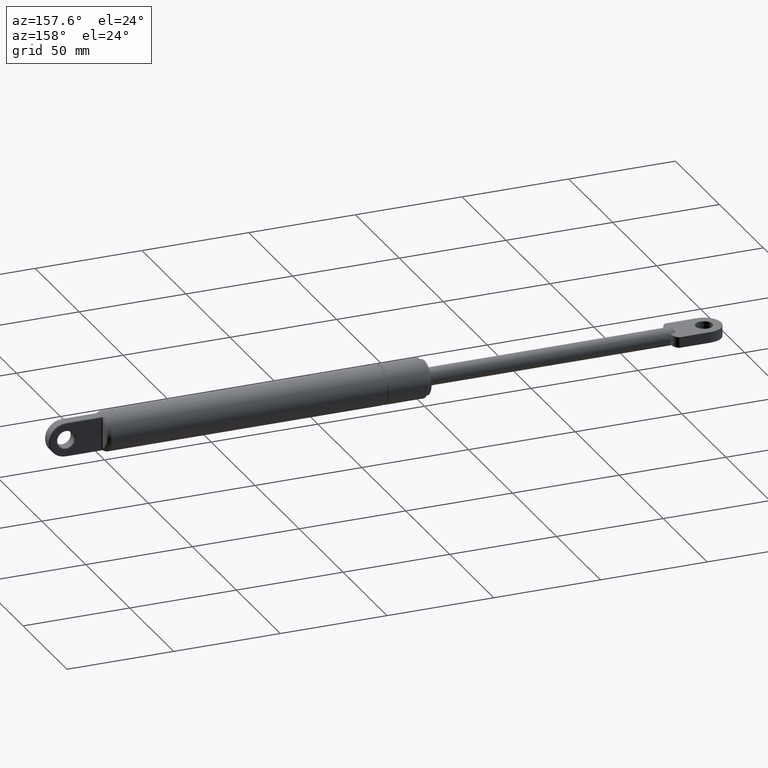
[diagram: clean part render]
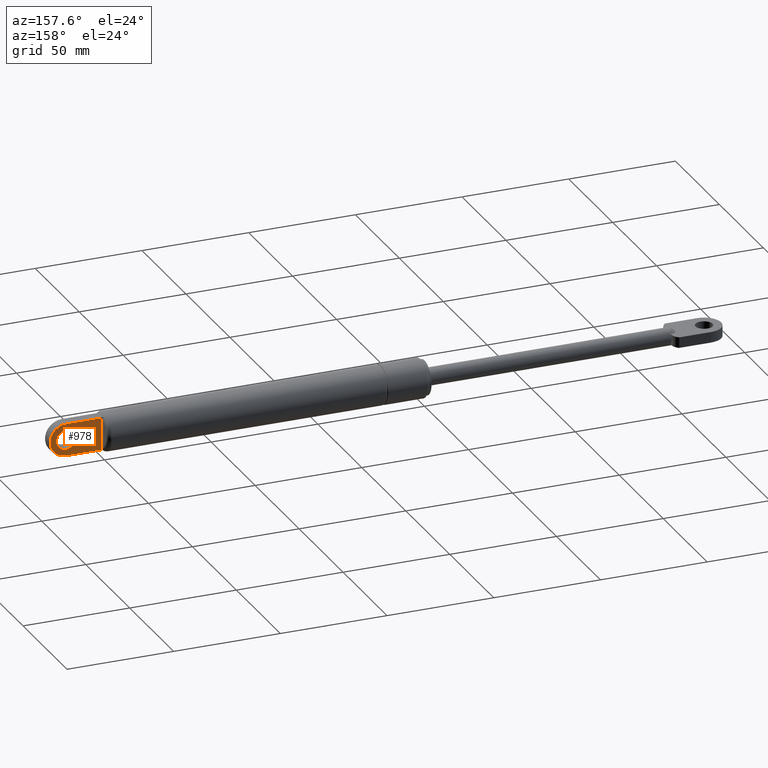
[diagram: same view with one face highlighted and labeled with its STEP entity id]
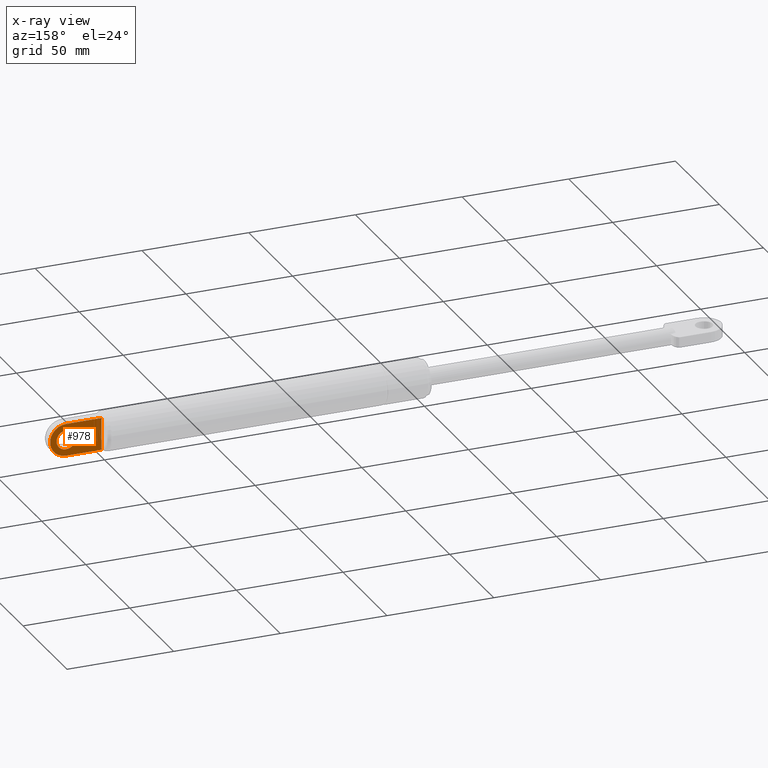
[diagram: x-ray of the same camera — body ghosted, the highlighted face saturated]
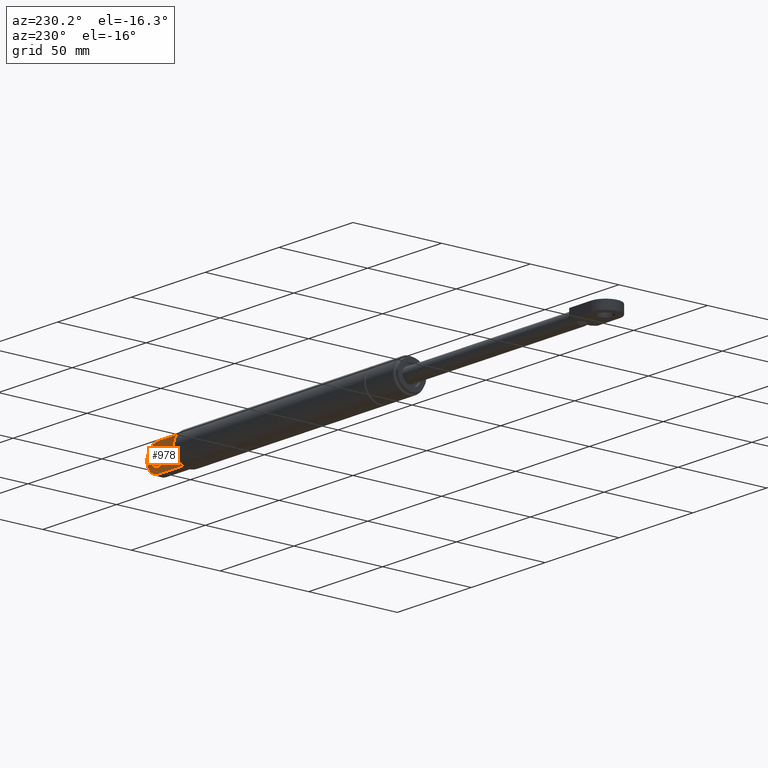
[diagram: same view with one face highlighted and labeled with its STEP entity id]
A machine part, auxiliary view. The second image highlights one B-rep face of the part: STEP entity #978.
The next image is the same camera in x-ray: the body ghosted, the highlighted face saturated — about 0% of this face is hidden behind the body in this view.
A second angle (auxiliary view) of the same face is appended — the face is thin or edge-on in the first view.
In plain terms, the highlighted planar face has unit normal (0, -1, 0).
Its self-contained STEP definition (entity closure, byte-faithful):
#54=B_SPLINE_CURVE_WITH_KNOTS('',3,(#1477,#1478,#1479,#1480),
 .UNSPECIFIED.,.F.,.F.,(4,4),(-0.458753506146987,-0.337946859791611),
 .UNSPECIFIED.);
#55=B_SPLINE_CURVE_WITH_KNOTS('',3,(#1484,#1485,#1486,#1487),
 .UNSPECIFIED.,.F.,.F.,(4,4),(-0.120806646377569,-1.11022302462516E-16),
 .UNSPECIFIED.);
#86=LINE('',#1475,#128);
#87=LINE('',#1482,#129);
#88=LINE('',#1489,#130);
#128=VECTOR('',#1185,16.7442382770954);
#129=VECTOR('',#1186,12.6491106406735);
#130=VECTOR('',#1187,16.7442382772499);
#170=PLANE('',#1052);
#222=FACE_BOUND('',#319,.T.);
#249=FACE_OUTER_BOUND('',#318,.T.);
#318=EDGE_LOOP('',(#703,#704,#705,#706,#707,#708));
#319=EDGE_LOOP('',(#709));
#409=CIRCLE('',#1049,4.5);
#411=CIRCLE('',#1053,7.50000000000001);
#470=VERTEX_POINT('',#1467);
#472=VERTEX_POINT('',#1473);
#473=VERTEX_POINT('',#1474);
#474=VERTEX_POINT('',#1476);
#475=VERTEX_POINT('',#1481);
#476=VERTEX_POINT('',#1483);
#477=VERTEX_POINT('',#1488);
#565=EDGE_CURVE('',#470,#470,#409,.T.);
#567=EDGE_CURVE('',#472,#473,#86,.T.);
#568=EDGE_CURVE('',#474,#472,#54,.T.);
#569=EDGE_CURVE('',#475,#474,#87,.T.);
#570=EDGE_CURVE('',#476,#475,#55,.T.);
#571=EDGE_CURVE('',#477,#476,#88,.T.);
#572=EDGE_CURVE('',#473,#477,#411,.T.);
#703=ORIENTED_EDGE('',*,*,#567,.F.);
#704=ORIENTED_EDGE('',*,*,#568,.F.);
#705=ORIENTED_EDGE('',*,*,#569,.F.);
#706=ORIENTED_EDGE('',*,*,#570,.F.);
#707=ORIENTED_EDGE('',*,*,#571,.F.);
#708=ORIENTED_EDGE('',*,*,#572,.F.);
#709=ORIENTED_EDGE('',*,*,#565,.F.);
#978=ADVANCED_FACE('',(#249,#222),#170,.F.);
#1049=AXIS2_PLACEMENT_3D('',#1468,#1177,#1178);
#1052=AXIS2_PLACEMENT_3D('',#1472,#1183,#1184);
#1053=AXIS2_PLACEMENT_3D('',#1490,#1188,#1189);
#1177=DIRECTION('center_axis',(0.,1.,0.));
#1178=DIRECTION('ref_axis',(1.,0.,0.));
#1183=DIRECTION('center_axis',(0.,-1.,0.));
#1184=DIRECTION('ref_axis',(0.,0.,-1.));
#1185=DIRECTION('',(1.,0.,0.));
#1186=DIRECTION('',(0.,0.,-1.));
#1187=DIRECTION('',(-1.,0.,0.));
#1188=DIRECTION('center_axis',(0.,-1.,0.));
#1189=DIRECTION('ref_axis',(1.,0.,1.61554457443259E-15));
#1467=CARTESIAN_POINT('',(164.496710490721,2.5,1.44708472321511E-14));
#1468=CARTESIAN_POINT('Origin',(168.996710490721,2.5,1.39197561725348E-14));
#1472=CARTESIAN_POINT('Origin',(162.242855013015,2.5,1.20940107357813E-15));
#1473=CARTESIAN_POINT('',(152.252472213625,2.5,-7.49999999982591));
#1474=CARTESIAN_POINT('',(168.996710490721,2.5,-7.50000000000003));
#1475=CARTESIAN_POINT('',(165.619782751868,2.5,-7.5));
#1476=CARTESIAN_POINT('',(152.496710490721,2.5,-6.32455532033677));
#1477=CARTESIAN_POINT('Ctrl Pts',(152.496710490721,2.5,-6.32455532033677));
#1478=CARTESIAN_POINT('Ctrl Pts',(152.496710490721,2.5,-6.72724414152136));
#1479=CARTESIAN_POINT('Ctrl Pts',(152.413568969062,2.5,-7.13150224897532));
#1480=CARTESIAN_POINT('Ctrl Pts',(152.251140058415,2.5,-7.49941186085851));
#1481=CARTESIAN_POINT('',(152.496710490721,2.5,6.32455532033677));
#1482=CARTESIAN_POINT('',(152.496710490721,2.5,2.25));
#1483=CARTESIAN_POINT('',(152.252472213471,2.5,7.5));
#1484=CARTESIAN_POINT('Ctrl Pts',(152.251140058325,2.5,7.49941186106127));
#1485=CARTESIAN_POINT('Ctrl Pts',(152.413568969031,2.5,7.13150224912386));
#1486=CARTESIAN_POINT('Ctrl Pts',(152.496710490721,2.5,6.72724414159535));
#1487=CARTESIAN_POINT('Ctrl Pts',(152.496710490721,2.5,6.32455532033677));
#1488=CARTESIAN_POINT('',(168.996710490721,2.5,7.5));
#1489=CARTESIAN_POINT('',(157.119782751868,2.5,7.5));
#1490=CARTESIAN_POINT('Origin',(168.996710490721,2.5,-1.39197561725348E-14));